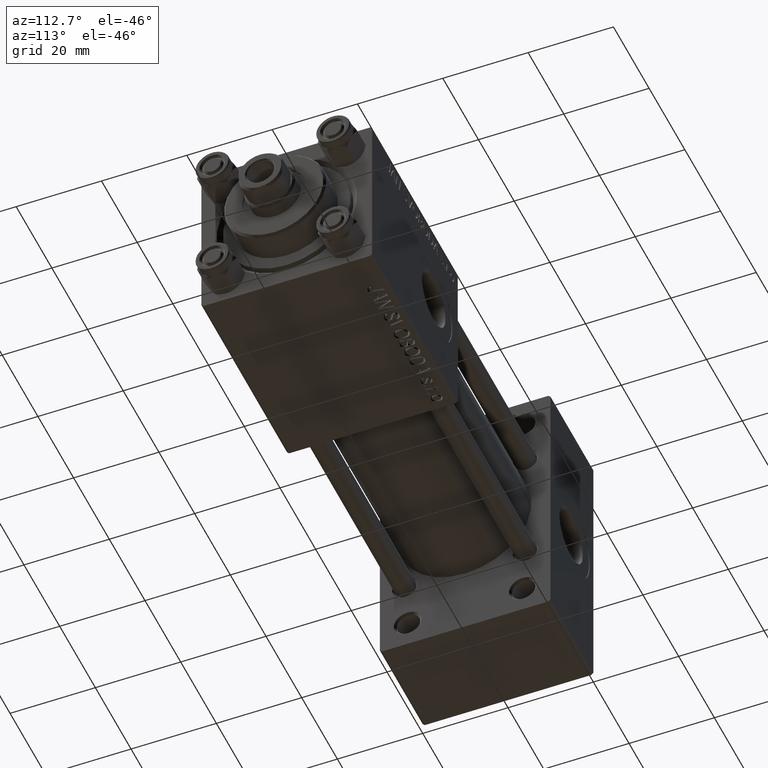
[diagram: clean part render]
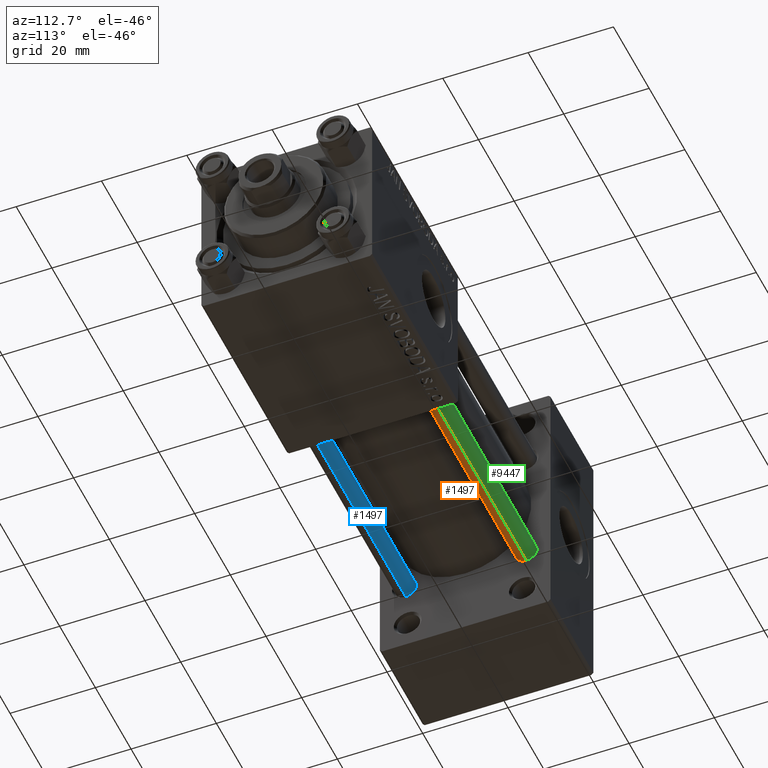
[diagram: same view with three faces highlighted in distinct colors, each labeled with its STEP entity id]
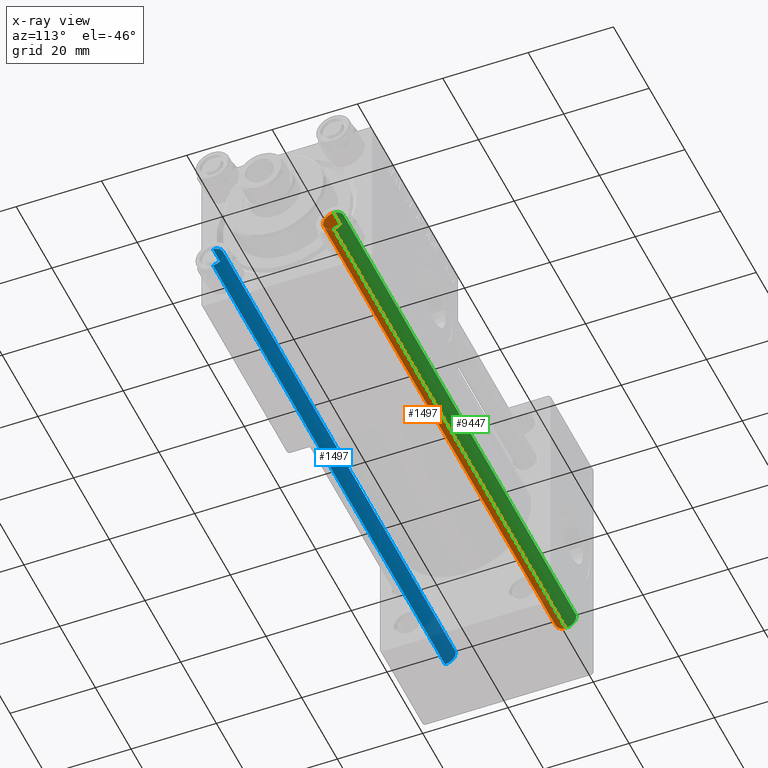
[diagram: x-ray of the same camera — body ghosted, the three highlighted faces saturated]
A machine part, auxiliary view with three faces highlighted in distinct colors.
The next image is the same camera in x-ray (body ghosted, the three faces saturated) — at least one of them is partly hidden behind the body in this view.
Their STEP definitions:

[orange] entity #1497 — the highlighted cylindrical surface (edge-blend (fillet) strip) has radius 2.5 mm, axis along (-1, 0, 0).
#673 = FACE_OUTER_BOUND ( 'NONE', #4452, .T. ) ;
#1497 = ADVANCED_FACE ( 'NONE', ( #673 ), #36275, .T. ) ;
#4452 = EDGE_LOOP ( 'NONE', ( #23046, #27081, #34433, #19515 ) ) ;
#4899 = VECTOR ( 'NONE', #21252, 1000.000000000000000 ) ;
#5035 = CIRCLE ( 'NONE', #28409, 2.500000000000000000 ) ;
#6934 = CARTESIAN_POINT ( 'NONE',  ( 2.500000000000000000, 3.061616997868383141E-16, 0.5000000000000004441 ) ) ;
#7076 = DIRECTION ( 'NONE',  ( 1.000000000000000000, 0.000000000000000000, 0.000000000000000000 ) ) ;
#7416 = DIRECTION ( 'NONE',  ( -0.000000000000000000, -0.000000000000000000, -1.000000000000000000 ) ) ;
#8574 = DIRECTION ( 'NONE',  ( 1.000000000000000000, 0.000000000000000000, 0.000000000000000000 ) ) ;
#9665 = AXIS2_PLACEMENT_3D ( 'NONE', #31484, #46876, #20859 ) ;
#10873 = DIRECTION ( 'NONE',  ( 0.000000000000000000, 0.000000000000000000, -1.000000000000000000 ) ) ;
#15066 = EDGE_CURVE ( 'NONE', #25253, #39051, #32873, .T. ) ;
#16654 = CARTESIAN_POINT ( 'NONE',  ( 2.500000000000000000, 3.061616997868383141E-16, 130.5000000000000000 ) ) ;
#19515 = ORIENTED_EDGE ( 'NONE', *, *, #43579, .F. ) ;
#20859 = DIRECTION ( 'NONE',  ( -1.000000000000000000, 0.000000000000000000, 0.000000000000000000 ) ) ;
#20896 = CARTESIAN_POINT ( 'NONE',  ( -2.500000000000000000, 0.000000000000000000, 130.5000000000000000 ) ) ;
#21252 = DIRECTION ( 'NONE',  ( -0.000000000000000000, -0.000000000000000000, -1.000000000000000000 ) ) ;
#22093 = EDGE_CURVE ( 'NONE', #39051, #25313, #5035, .T. ) ;
#23046 = ORIENTED_EDGE ( 'NONE', *, *, #23250, .T. ) ;
#23250 = EDGE_CURVE ( 'NONE', #43040, #25253, #47797, .T. ) ;
#25253 = VERTEX_POINT ( 'NONE', #16654 ) ;
#25313 = VERTEX_POINT ( 'NONE', #47200 ) ;
#25994 = AXIS2_PLACEMENT_3D ( 'NONE', #49742, #10873, #7076 ) ;
#27081 = ORIENTED_EDGE ( 'NONE', *, *, #15066, .T. ) ;
#28409 = AXIS2_PLACEMENT_3D ( 'NONE', #47198, #43409, #8574 ) ;
#31484 = CARTESIAN_POINT ( 'NONE',  ( 0.000000000000000000, 0.000000000000000000, 131.0000000000000000 ) ) ;
#32873 = LINE ( 'NONE', #48261, #4899 ) ;
#34433 = ORIENTED_EDGE ( 'NONE', *, *, #22093, .T. ) ;
#36275 = CYLINDRICAL_SURFACE ( 'NONE', #9665, 2.500000000000000000 ) ;
#39051 = VERTEX_POINT ( 'NONE', #6934 ) ;
#41760 = LINE ( 'NONE', #49826, #46654 ) ;
#43040 = VERTEX_POINT ( 'NONE', #20896 ) ;
#43409 = DIRECTION ( 'NONE',  ( -0.000000000000000000, -0.000000000000000000, 1.000000000000000000 ) ) ;
#43579 = EDGE_CURVE ( 'NONE', #43040, #25313, #41760, .T. ) ;
#46654 = VECTOR ( 'NONE', #7416, 1000.000000000000000 ) ;
#46876 = DIRECTION ( 'NONE',  ( -0.000000000000000000, -0.000000000000000000, -1.000000000000000000 ) ) ;
#47198 = CARTESIAN_POINT ( 'NONE',  ( 0.000000000000000000, 0.000000000000000000, 0.5000000000000004441 ) ) ;
#47200 = CARTESIAN_POINT ( 'NONE',  ( -2.500000000000000000, 0.000000000000000000, 0.5000000000000004441 ) ) ;
#47797 = CIRCLE ( 'NONE', #25994, 2.500000000000000000 ) ;
#48261 = CARTESIAN_POINT ( 'NONE',  ( 2.500000000000000000, 3.061616997868383141E-16, 131.0000000000000000 ) ) ;
#49742 = CARTESIAN_POINT ( 'NONE',  ( 0.000000000000000000, 0.000000000000000000, 130.5000000000000000 ) ) ;
#49826 = CARTESIAN_POINT ( 'NONE',  ( -2.500000000000000000, 0.000000000000000000, 131.0000000000000000 ) ) ;

[blue] entity #1497 — the highlighted cylindrical surface (edge-blend (fillet) strip) has radius 2.5 mm, axis along (1, -0, -0).
#673 = FACE_OUTER_BOUND ( 'NONE', #4452, .T. ) ;
#1497 = ADVANCED_FACE ( 'NONE', ( #673 ), #36275, .T. ) ;
#4452 = EDGE_LOOP ( 'NONE', ( #23046, #27081, #34433, #19515 ) ) ;
#4899 = VECTOR ( 'NONE', #21252, 1000.000000000000000 ) ;
#5035 = CIRCLE ( 'NONE', #28409, 2.500000000000000000 ) ;
#6934 = CARTESIAN_POINT ( 'NONE',  ( 2.500000000000000000, 3.061616997868383141E-16, 0.5000000000000004441 ) ) ;
#7076 = DIRECTION ( 'NONE',  ( 1.000000000000000000, 0.000000000000000000, 0.000000000000000000 ) ) ;
#7416 = DIRECTION ( 'NONE',  ( -0.000000000000000000, -0.000000000000000000, -1.000000000000000000 ) ) ;
#8574 = DIRECTION ( 'NONE',  ( 1.000000000000000000, 0.000000000000000000, 0.000000000000000000 ) ) ;
#9665 = AXIS2_PLACEMENT_3D ( 'NONE', #31484, #46876, #20859 ) ;
#10873 = DIRECTION ( 'NONE',  ( 0.000000000000000000, 0.000000000000000000, -1.000000000000000000 ) ) ;
#15066 = EDGE_CURVE ( 'NONE', #25253, #39051, #32873, .T. ) ;
#16654 = CARTESIAN_POINT ( 'NONE',  ( 2.500000000000000000, 3.061616997868383141E-16, 130.5000000000000000 ) ) ;
#19515 = ORIENTED_EDGE ( 'NONE', *, *, #43579, .F. ) ;
#20859 = DIRECTION ( 'NONE',  ( -1.000000000000000000, 0.000000000000000000, 0.000000000000000000 ) ) ;
#20896 = CARTESIAN_POINT ( 'NONE',  ( -2.500000000000000000, 0.000000000000000000, 130.5000000000000000 ) ) ;
#21252 = DIRECTION ( 'NONE',  ( -0.000000000000000000, -0.000000000000000000, -1.000000000000000000 ) ) ;
#22093 = EDGE_CURVE ( 'NONE', #39051, #25313, #5035, .T. ) ;
#23046 = ORIENTED_EDGE ( 'NONE', *, *, #23250, .T. ) ;
#23250 = EDGE_CURVE ( 'NONE', #43040, #25253, #47797, .T. ) ;
#25253 = VERTEX_POINT ( 'NONE', #16654 ) ;
#25313 = VERTEX_POINT ( 'NONE', #47200 ) ;
#25994 = AXIS2_PLACEMENT_3D ( 'NONE', #49742, #10873, #7076 ) ;
#27081 = ORIENTED_EDGE ( 'NONE', *, *, #15066, .T. ) ;
#28409 = AXIS2_PLACEMENT_3D ( 'NONE', #47198, #43409, #8574 ) ;
#31484 = CARTESIAN_POINT ( 'NONE',  ( 0.000000000000000000, 0.000000000000000000, 131.0000000000000000 ) ) ;
#32873 = LINE ( 'NONE', #48261, #4899 ) ;
#34433 = ORIENTED_EDGE ( 'NONE', *, *, #22093, .T. ) ;
#36275 = CYLINDRICAL_SURFACE ( 'NONE', #9665, 2.500000000000000000 ) ;
#39051 = VERTEX_POINT ( 'NONE', #6934 ) ;
#41760 = LINE ( 'NONE', #49826, #46654 ) ;
#43040 = VERTEX_POINT ( 'NONE', #20896 ) ;
#43409 = DIRECTION ( 'NONE',  ( -0.000000000000000000, -0.000000000000000000, 1.000000000000000000 ) ) ;
#43579 = EDGE_CURVE ( 'NONE', #43040, #25313, #41760, .T. ) ;
#46654 = VECTOR ( 'NONE', #7416, 1000.000000000000000 ) ;
#46876 = DIRECTION ( 'NONE',  ( -0.000000000000000000, -0.000000000000000000, -1.000000000000000000 ) ) ;
#47198 = CARTESIAN_POINT ( 'NONE',  ( 0.000000000000000000, 0.000000000000000000, 0.5000000000000004441 ) ) ;
#47200 = CARTESIAN_POINT ( 'NONE',  ( -2.500000000000000000, 0.000000000000000000, 0.5000000000000004441 ) ) ;
#47797 = CIRCLE ( 'NONE', #25994, 2.500000000000000000 ) ;
#48261 = CARTESIAN_POINT ( 'NONE',  ( 2.500000000000000000, 3.061616997868383141E-16, 131.0000000000000000 ) ) ;
#49742 = CARTESIAN_POINT ( 'NONE',  ( 0.000000000000000000, 0.000000000000000000, 130.5000000000000000 ) ) ;
#49826 = CARTESIAN_POINT ( 'NONE',  ( -2.500000000000000000, 0.000000000000000000, 131.0000000000000000 ) ) ;

[green] entity #9447 — the highlighted cylindrical surface (edge-blend (fillet) strip) has radius 2.5 mm, axis along (-1, 0, 0).
#468 = DIRECTION ( 'NONE',  ( -0.000000000000000000, -0.000000000000000000, -1.000000000000000000 ) ) ;
#1356 = CIRCLE ( 'NONE', #29575, 2.500000000000000000 ) ;
#4092 = DIRECTION ( 'NONE',  ( 1.000000000000000000, 0.000000000000000000, 0.000000000000000000 ) ) ;
#4743 = DIRECTION ( 'NONE',  ( 1.000000000000000000, 0.000000000000000000, 0.000000000000000000 ) ) ;
#4899 = VECTOR ( 'NONE', #21252, 1000.000000000000000 ) ;
#6934 = CARTESIAN_POINT ( 'NONE',  ( 2.500000000000000000, 3.061616997868383141E-16, 0.5000000000000004441 ) ) ;
#7416 = DIRECTION ( 'NONE',  ( -0.000000000000000000, -0.000000000000000000, -1.000000000000000000 ) ) ;
#7948 = CIRCLE ( 'NONE', #14397, 2.500000000000000000 ) ;
#9447 = ADVANCED_FACE ( 'NONE', ( #45662 ), #22696, .T. ) ;
#10691 = ORIENTED_EDGE ( 'NONE', *, *, #43579, .T. ) ;
#14397 = AXIS2_PLACEMENT_3D ( 'NONE', #14960, #23025, #4092 ) ;
#14960 = CARTESIAN_POINT ( 'NONE',  ( 0.000000000000000000, 0.000000000000000000, 130.5000000000000000 ) ) ;
#15066 = EDGE_CURVE ( 'NONE', #25253, #39051, #32873, .T. ) ;
#16654 = CARTESIAN_POINT ( 'NONE',  ( 2.500000000000000000, 3.061616997868383141E-16, 130.5000000000000000 ) ) ;
#20653 = CARTESIAN_POINT ( 'NONE',  ( 0.000000000000000000, 0.000000000000000000, 0.5000000000000004441 ) ) ;
#20896 = CARTESIAN_POINT ( 'NONE',  ( -2.500000000000000000, 0.000000000000000000, 130.5000000000000000 ) ) ;
#21252 = DIRECTION ( 'NONE',  ( -0.000000000000000000, -0.000000000000000000, -1.000000000000000000 ) ) ;
#22696 = CYLINDRICAL_SURFACE ( 'NONE', #49049, 2.500000000000000000 ) ;
#23025 = DIRECTION ( 'NONE',  ( 0.000000000000000000, 0.000000000000000000, -1.000000000000000000 ) ) ;
#25253 = VERTEX_POINT ( 'NONE', #16654 ) ;
#25313 = VERTEX_POINT ( 'NONE', #47200 ) ;
#26472 = DIRECTION ( 'NONE',  ( -1.000000000000000000, 0.000000000000000000, 0.000000000000000000 ) ) ;
#29575 = AXIS2_PLACEMENT_3D ( 'NONE', #20653, #35822, #4743 ) ;
#29592 = ORIENTED_EDGE ( 'NONE', *, *, #33973, .T. ) ;
#32873 = LINE ( 'NONE', #48261, #4899 ) ;
#33973 = EDGE_CURVE ( 'NONE', #25313, #39051, #1356, .T. ) ;
#35384 = ORIENTED_EDGE ( 'NONE', *, *, #43700, .T. ) ;
#35822 = DIRECTION ( 'NONE',  ( -0.000000000000000000, -0.000000000000000000, 1.000000000000000000 ) ) ;
#39051 = VERTEX_POINT ( 'NONE', #6934 ) ;
#41649 = ORIENTED_EDGE ( 'NONE', *, *, #15066, .F. ) ;
#41760 = LINE ( 'NONE', #49826, #46654 ) ;
#42004 = EDGE_LOOP ( 'NONE', ( #41649, #35384, #10691, #29592 ) ) ;
#42143 = CARTESIAN_POINT ( 'NONE',  ( 0.000000000000000000, 0.000000000000000000, 131.0000000000000000 ) ) ;
#43040 = VERTEX_POINT ( 'NONE', #20896 ) ;
#43579 = EDGE_CURVE ( 'NONE', #43040, #25313, #41760, .T. ) ;
#43700 = EDGE_CURVE ( 'NONE', #25253, #43040, #7948, .T. ) ;
#45662 = FACE_OUTER_BOUND ( 'NONE', #42004, .T. ) ;
#46654 = VECTOR ( 'NONE', #7416, 1000.000000000000000 ) ;
#47200 = CARTESIAN_POINT ( 'NONE',  ( -2.500000000000000000, 0.000000000000000000, 0.5000000000000004441 ) ) ;
#48261 = CARTESIAN_POINT ( 'NONE',  ( 2.500000000000000000, 3.061616997868383141E-16, 131.0000000000000000 ) ) ;
#49049 = AXIS2_PLACEMENT_3D ( 'NONE', #42143, #468, #26472 ) ;
#49826 = CARTESIAN_POINT ( 'NONE',  ( -2.500000000000000000, 0.000000000000000000, 131.0000000000000000 ) ) ;